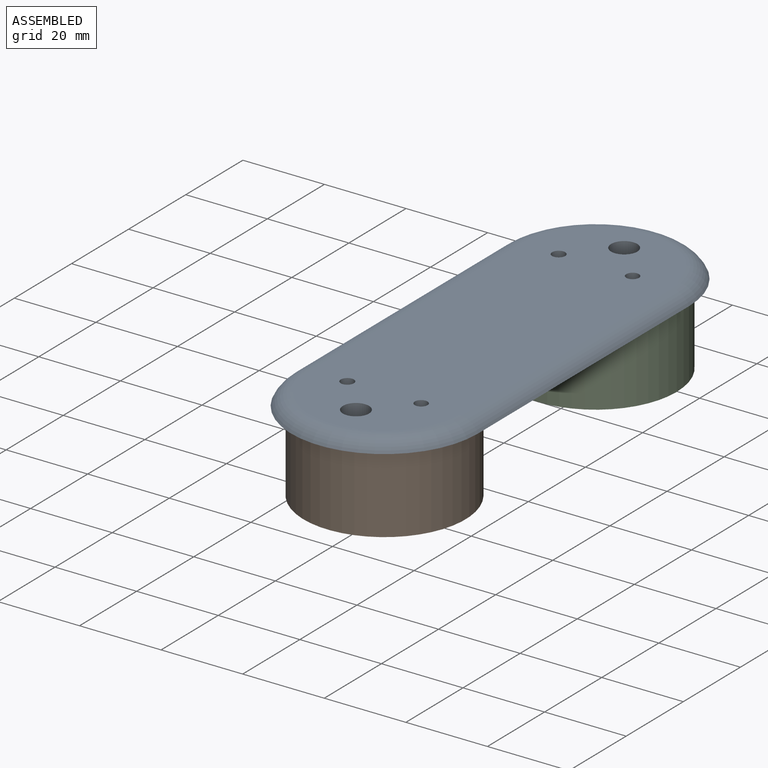
[diagram: assembled view]
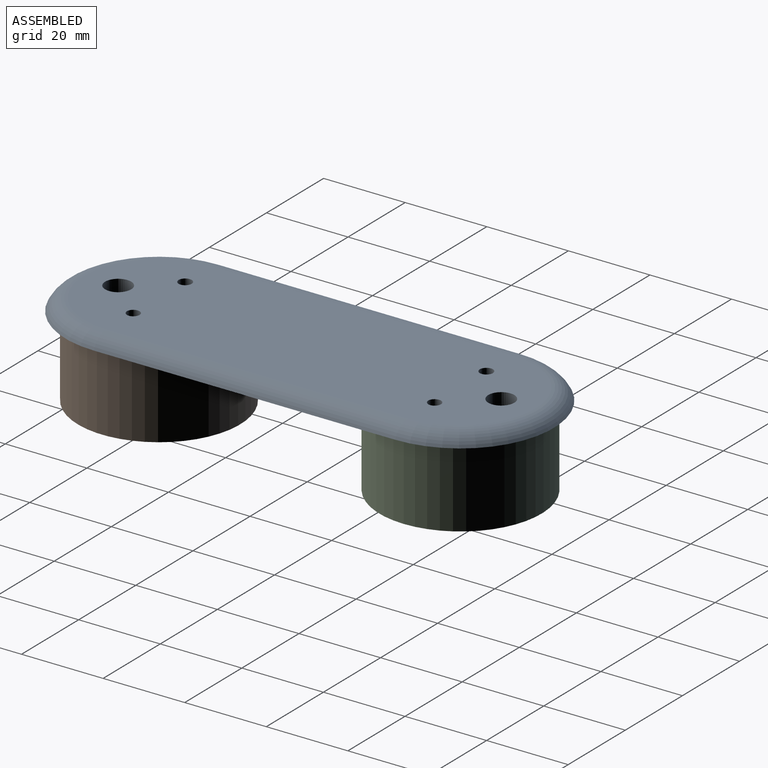
[diagram: assembled view, second angle]
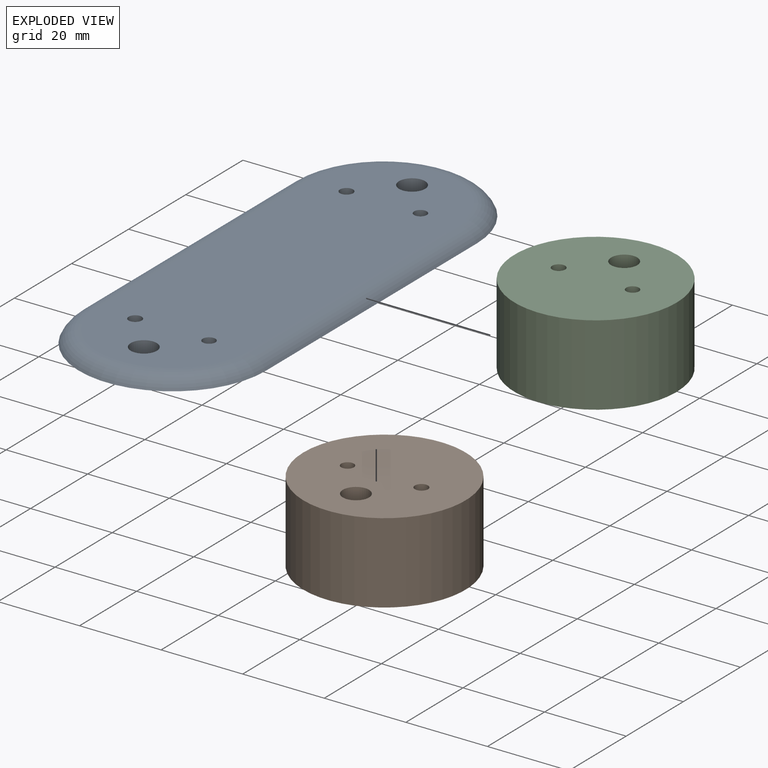
[diagram: exploded view]
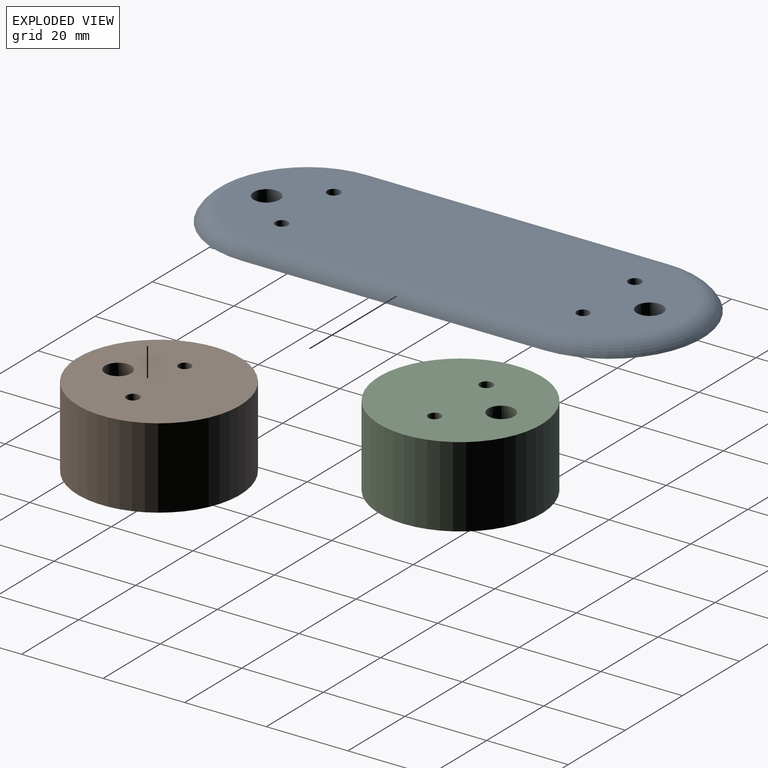
[diagram: exploded view, second angle]
ASSEMBLY  parts=3 mates=2
PART A: 12 faces, bbox 50.4x124.3x5 mm
  f0: plane 110.51x36.6mm, normal (0,0,1), area 3661mm2, adj f2,f3,f4,f5,f6,f7,f8,f9
  f1: plane 119.67x45.76mm, normal (0,0,-1), area 4931.2mm2, adj f2,f3,f4,f5,f6,f7,f8,f9
  f2: cylinder r=5mm len=73.91mm, axis (0,-1,0), area 428.4mm2, adj f0,f1,f3,f4
  f3: torus R=18.3mm, axis (0,0,-1), area 380.3mm2, adj f0,f1,f2,f5
  f4: torus R=18.3mm, axis (0,0,-1), area 380.3mm2, adj f0,f1,f2,f5
  f5: cylinder r=5mm len=73.91mm, axis (0,-1,0), area 428.4mm2, adj f0,f1,f3,f4
  f6: cylinder r=1.6mm len=3.2mm, axis (0,0,1), area 30.2mm2, adj f0,f1
  f7: cylinder r=1.55mm len=3.1mm, axis (0,0,1), area 29.2mm2, adj f0,f1
  f8: cylinder r=1.6mm len=3.2mm, axis (0,0,1), area 30.2mm2, adj f0,f1
  f9: cylinder r=1.55mm len=3.1mm, axis (0,0,1), area 29.2mm2, adj f0,f1
  f10: cylinder r=3.2mm len=6.4mm, axis (0,0,1), area 60.3mm2, adj f0,f1
  f11: cylinder r=3.2mm len=6.4mm, axis (0,0,1), area 60.3mm2, adj f0,f1
PART B: 33 faces, bbox 39.8x39.8x19.8 mm
  f0: cylinder r=1.6mm len=5.1mm, axis (0,0,1), area 51.3mm2, adj f4,f26
  f1: cylinder r=1.6mm len=3.2mm, axis (0,0,1), area 25mm2, adj f5,f18
  f2: cylinder r=1.55mm len=3.1mm, axis (0,0,1), area 24.2mm2, adj f5,f25
  f3: plane 6.4x6.4mm, normal (0,0,-1), area 6.9mm2, adj f9,f19,f20,f21,f22,f23,f24
  f4: plane 39.76x39.76mm, normal (0,0,-1), area 1169.2mm2, adj f0,f6,f9,f10
  f5: plane 39.76x39.76mm, normal (0,0,1), area 1193.8mm2, adj f1,f2,f6,f7
  f6: cylinder r=19.88mm len=39.76mm, axis (0,0,1), area 2472mm2, adj f4,f5
  f7: cylinder r=3.2mm len=12.29mm, axis (0,0,1), area 247.1mm2, adj f5,f8
  f8: plane 6.4x6.4mm, normal (0,0,1), area 6.9mm2, adj f7,f27,f28,f29,f30,f31,f32
  f9: cylinder r=3.2mm len=15mm, axis (0,0,-1), area 301.6mm2, adj f3,f4
  f10: cylinder r=3.2mm len=15mm, axis (0,0,-1), area 301.6mm2, adj f4,f11
  f11: plane 6.4x6.4mm, normal (0,0,-1), area 6.9mm2, adj f10,f12,f13,f14,f15,f16,f17
  f12: plane 2.7x2.3mm, normal (-0.5,-0.87,0), area 7.2mm2, adj f11,f13,f17,f18
  f13: plane 3.12x2.3mm, normal (-1,0,0), area 7.2mm2, adj f11,f12,f14,f18
  f14: plane 2.7x2.3mm, normal (-0.5,0.87,0), area 7.2mm2, adj f11,f13,f15,f18
  f15: plane 2.7x2.3mm, normal (0.5,0.87,0), area 7.2mm2, adj f11,f14,f16,f18
  f16: plane 3.12x2.3mm, normal (1,0,0), area 7.2mm2, adj f11,f15,f17,f18
  f17: plane 2.7x2.3mm, normal (0.5,-0.87,0), area 7.2mm2, adj f11,f12,f16,f18
  f18: plane 6.24x5.4mm, normal (0,0,-1), area 17.2mm2, adj f1,f12,f13,f14,f15,f16,f17
  f19: plane 2.7x2.3mm, normal (0.5,0.87,0), area 7.2mm2, adj f3,f20,f24,f25
  f20: plane 3.12x2.3mm, normal (1,0,0), area 7.2mm2, adj f3,f19,f21,f25
  f21: plane 2.7x2.3mm, normal (0.5,-0.87,0), area 7.2mm2, adj f3,f20,f22,f25
  f22: plane 2.7x2.3mm, normal (-0.5,-0.87,0), area 7.2mm2, adj f3,f21,f23,f25
  f23: plane 3.12x2.3mm, normal (-1,0,0), area 7.2mm2, adj f3,f22,f24,f25
  f24: plane 2.7x2.3mm, normal (-0.5,0.87,0), area 7.2mm2, adj f3,f19,f23,f25
  f25: plane 6.24x5.4mm, normal (0,0,-1), area 17.7mm2, adj f2,f19,f20,f21,f22,f23,f24
  f26: plane 6.24x5.4mm, normal (0,0,1), area 17.2mm2, adj f0,f27,f28,f29,f30,f31,f32
  f27: plane 2.7x2.4mm, normal (-0.87,-0.5,0), area 7.5mm2, adj f8,f26,f28,f32
  f28: plane 3.12x2.4mm, normal (0,-1,0), area 7.5mm2, adj f8,f26,f27,f29
  f29: plane 2.7x2.4mm, normal (0.87,-0.5,0), area 7.5mm2, adj f8,f26,f28,f30
  f30: plane 2.7x2.4mm, normal (0.87,0.5,0), area 7.5mm2, adj f8,f26,f29,f31
  f31: plane 3.12x2.4mm, normal (0,1,0), area 7.5mm2, adj f8,f26,f30,f32
  f32: plane 2.7x2.4mm, normal (-0.87,0.5,0), area 7.5mm2, adj f8,f26,f27,f31
PART C: same geometry as B
PLACE A t=(-23.77,15.05,-34.1)mm
PLACE B rot(axis=(0,0,1),180deg) t=(-23.77,88.96,-34.1)mm
PLACE C t=(-23.77,15.05,-34.1)mm
MATE fastened C.f0 <-> A.f11  axis (0,0,1) through (-23.77,98.96,-34.1)mm
MATE fastened B.f0 <-> A.f10  axis (0,0,1) through (-23.77,5.05,-34.1)mm
